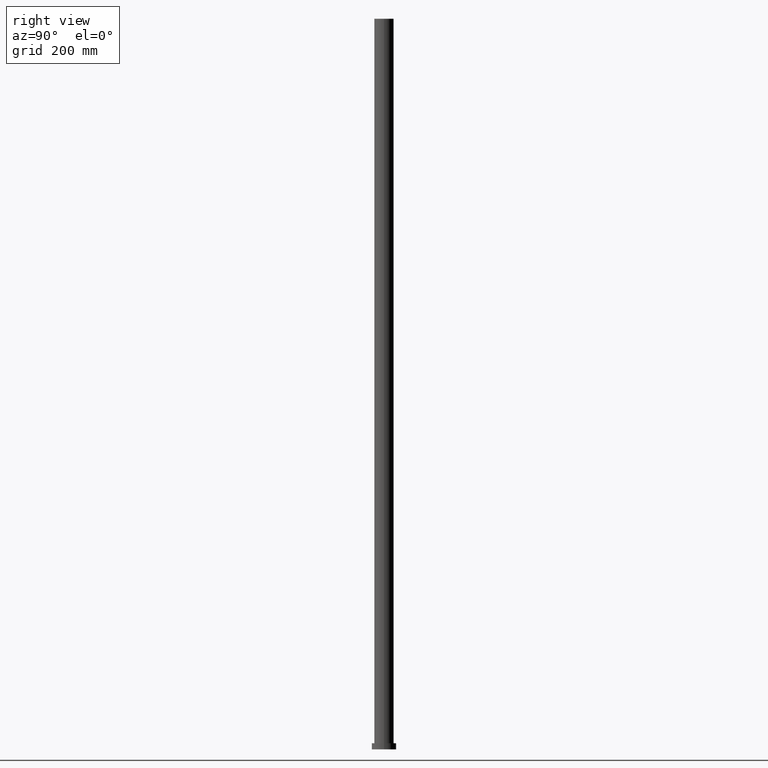
[diagram: clean part render]
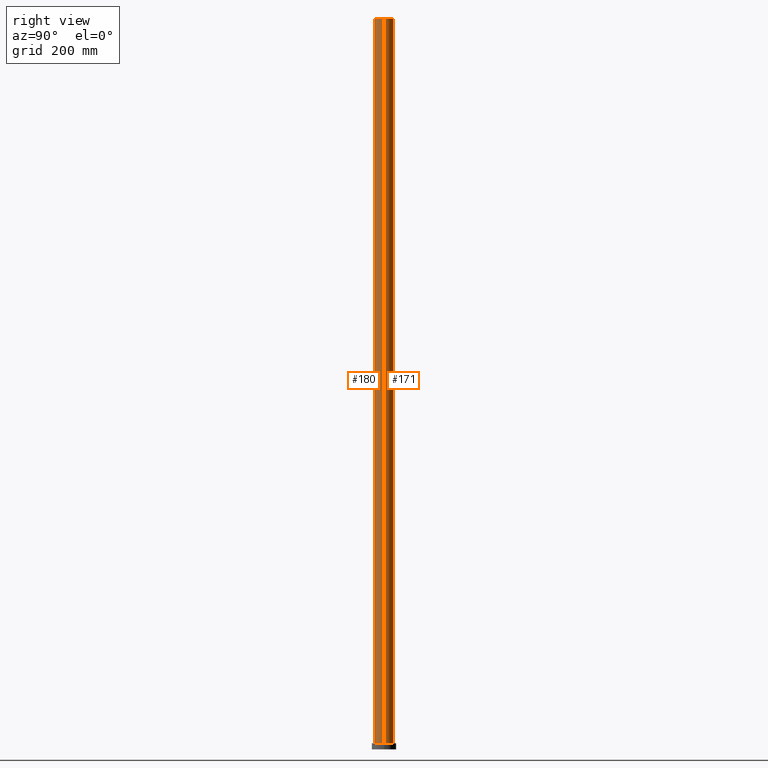
[diagram: same view with one multi-face feature highlighted, each face labeled with its STEP entity id]
A machine part, right view. The highlighted faces form ONE feature: a constant-radius fillet chain: 2 tangent blend faces with common blend radius 16 mm. The faces share edges in the B-rep.
Their STEP definitions:
[1] entity #180 (Cylinder):
#17 = CARTESIAN_POINT ( 'NONE',  ( 0.000000000000000000, 0.000000000000000000, 10.00000000000000000 ) ) ;
#20 = VERTEX_POINT ( 'NONE', #248 ) ;
#22 = ORIENTED_EDGE ( 'NONE', *, *, #137, .T. ) ;
#26 = LINE ( 'NONE', #106, #206 ) ;
#29 = DIRECTION ( 'NONE',  ( -1.000000000000000000, 0.000000000000000000, 0.000000000000000000 ) ) ;
#51 = CARTESIAN_POINT ( 'NONE',  ( 16.00000000000000000, 1.959434878635765131E-15, 10.00000000000000000 ) ) ;
#53 = AXIS2_PLACEMENT_3D ( 'NONE', #209, #187, #29 ) ;
#54 = VECTOR ( 'NONE', #226, 1000.000000000000000 ) ;
#63 = AXIS2_PLACEMENT_3D ( 'NONE', #17, #125, #91 ) ;
#68 = VERTEX_POINT ( 'NONE', #136 ) ;
#73 = FACE_OUTER_BOUND ( 'NONE', #220, .T. ) ;
#74 = DIRECTION ( 'NONE',  ( 0.000000000000000000, 0.000000000000000000, 1.000000000000000000 ) ) ;
#83 = ORIENTED_EDGE ( 'NONE', *, *, #170, .F. ) ;
#91 = DIRECTION ( 'NONE',  ( 1.000000000000000000, 0.000000000000000000, 0.000000000000000000 ) ) ;
#100 = VERTEX_POINT ( 'NONE', #51 ) ;
#106 = CARTESIAN_POINT ( 'NONE',  ( -16.00000000000000000, 0.000000000000000000, 1200.000000000000000 ) ) ;
#121 = ORIENTED_EDGE ( 'NONE', *, *, #198, .T. ) ;
#125 = DIRECTION ( 'NONE',  ( 0.000000000000000000, 0.000000000000000000, 1.000000000000000000 ) ) ;
#136 = CARTESIAN_POINT ( 'NONE',  ( -16.00000000000000000, 0.000000000000000000, 1200.000000000000000 ) ) ;
#137 = EDGE_CURVE ( 'NONE', #68, #20, #26, .T. ) ;
#142 = CYLINDRICAL_SURFACE ( 'NONE', #53, 16.00000000000000000 ) ;
#146 = AXIS2_PLACEMENT_3D ( 'NONE', #255, #74, #208 ) ;
#158 = VERTEX_POINT ( 'NONE', #211 ) ;
#170 = EDGE_CURVE ( 'NONE', #158, #100, #188, .T. ) ;
#176 = CIRCLE ( 'NONE', #146, 16.00000000000000000 ) ;
#180 = ADVANCED_FACE ( 'NONE', ( #73 ), #142, .T. ) ;
#186 = CARTESIAN_POINT ( 'NONE',  ( 16.00000000000000000, 1.959434878635765131E-15, 1200.000000000000000 ) ) ;
#187 = DIRECTION ( 'NONE',  ( -0.000000000000000000, -0.000000000000000000, -1.000000000000000000 ) ) ;
#188 = LINE ( 'NONE', #186, #54 ) ;
#198 = EDGE_CURVE ( 'NONE', #20, #100, #200, .T. ) ;
#200 = CIRCLE ( 'NONE', #63, 16.00000000000000000 ) ;
#204 = EDGE_CURVE ( 'NONE', #68, #158, #176, .T. ) ;
#205 = ORIENTED_EDGE ( 'NONE', *, *, #204, .F. ) ;
#206 = VECTOR ( 'NONE', #229, 1000.000000000000000 ) ;
#208 = DIRECTION ( 'NONE',  ( 1.000000000000000000, 0.000000000000000000, 0.000000000000000000 ) ) ;
#209 = CARTESIAN_POINT ( 'NONE',  ( 0.000000000000000000, 0.000000000000000000, 1200.000000000000000 ) ) ;
#211 = CARTESIAN_POINT ( 'NONE',  ( 16.00000000000000000, 1.959434878635765131E-15, 1200.000000000000000 ) ) ;
#220 = EDGE_LOOP ( 'NONE', ( #83, #205, #22, #121 ) ) ;
#226 = DIRECTION ( 'NONE',  ( -0.000000000000000000, -0.000000000000000000, -1.000000000000000000 ) ) ;
#229 = DIRECTION ( 'NONE',  ( -0.000000000000000000, -0.000000000000000000, -1.000000000000000000 ) ) ;
#248 = CARTESIAN_POINT ( 'NONE',  ( -16.00000000000000000, 0.000000000000000000, 10.00000000000000000 ) ) ;
#255 = CARTESIAN_POINT ( 'NONE',  ( 0.000000000000000000, 0.000000000000000000, 1200.000000000000000 ) ) ;
[2] entity #171 (Cylinder):
#4 = AXIS2_PLACEMENT_3D ( 'NONE', #105, #143, #87 ) ;
#15 = CYLINDRICAL_SURFACE ( 'NONE', #182, 16.00000000000000000 ) ;
#20 = VERTEX_POINT ( 'NONE', #248 ) ;
#24 = ORIENTED_EDGE ( 'NONE', *, *, #139, .T. ) ;
#26 = LINE ( 'NONE', #106, #206 ) ;
#37 = AXIS2_PLACEMENT_3D ( 'NONE', #227, #127, #46 ) ;
#42 = ORIENTED_EDGE ( 'NONE', *, *, #170, .T. ) ;
#43 = ORIENTED_EDGE ( 'NONE', *, *, #137, .F. ) ;
#46 = DIRECTION ( 'NONE',  ( 1.000000000000000000, 0.000000000000000000, 0.000000000000000000 ) ) ;
#47 = DIRECTION ( 'NONE',  ( -1.000000000000000000, 0.000000000000000000, 0.000000000000000000 ) ) ;
#51 = CARTESIAN_POINT ( 'NONE',  ( 16.00000000000000000, 1.959434878635765131E-15, 10.00000000000000000 ) ) ;
#54 = VECTOR ( 'NONE', #226, 1000.000000000000000 ) ;
#68 = VERTEX_POINT ( 'NONE', #136 ) ;
#78 = CIRCLE ( 'NONE', #37, 16.00000000000000000 ) ;
#79 = EDGE_LOOP ( 'NONE', ( #140, #42, #24, #43 ) ) ;
#87 = DIRECTION ( 'NONE',  ( 1.000000000000000000, 0.000000000000000000, 0.000000000000000000 ) ) ;
#90 = CARTESIAN_POINT ( 'NONE',  ( 0.000000000000000000, 0.000000000000000000, 1200.000000000000000 ) ) ;
#100 = VERTEX_POINT ( 'NONE', #51 ) ;
#105 = CARTESIAN_POINT ( 'NONE',  ( 0.000000000000000000, 0.000000000000000000, 10.00000000000000000 ) ) ;
#106 = CARTESIAN_POINT ( 'NONE',  ( -16.00000000000000000, 0.000000000000000000, 1200.000000000000000 ) ) ;
#127 = DIRECTION ( 'NONE',  ( 0.000000000000000000, 0.000000000000000000, 1.000000000000000000 ) ) ;
#128 = EDGE_CURVE ( 'NONE', #158, #68, #78, .T. ) ;
#136 = CARTESIAN_POINT ( 'NONE',  ( -16.00000000000000000, 0.000000000000000000, 1200.000000000000000 ) ) ;
#137 = EDGE_CURVE ( 'NONE', #68, #20, #26, .T. ) ;
#139 = EDGE_CURVE ( 'NONE', #100, #20, #224, .T. ) ;
#140 = ORIENTED_EDGE ( 'NONE', *, *, #128, .F. ) ;
#143 = DIRECTION ( 'NONE',  ( 0.000000000000000000, 0.000000000000000000, 1.000000000000000000 ) ) ;
#158 = VERTEX_POINT ( 'NONE', #211 ) ;
#167 = DIRECTION ( 'NONE',  ( -0.000000000000000000, -0.000000000000000000, -1.000000000000000000 ) ) ;
#170 = EDGE_CURVE ( 'NONE', #158, #100, #188, .T. ) ;
#171 = ADVANCED_FACE ( 'NONE', ( #189 ), #15, .T. ) ;
#182 = AXIS2_PLACEMENT_3D ( 'NONE', #90, #167, #47 ) ;
#186 = CARTESIAN_POINT ( 'NONE',  ( 16.00000000000000000, 1.959434878635765131E-15, 1200.000000000000000 ) ) ;
#188 = LINE ( 'NONE', #186, #54 ) ;
#189 = FACE_OUTER_BOUND ( 'NONE', #79, .T. ) ;
#206 = VECTOR ( 'NONE', #229, 1000.000000000000000 ) ;
#211 = CARTESIAN_POINT ( 'NONE',  ( 16.00000000000000000, 1.959434878635765131E-15, 1200.000000000000000 ) ) ;
#224 = CIRCLE ( 'NONE', #4, 16.00000000000000000 ) ;
#226 = DIRECTION ( 'NONE',  ( -0.000000000000000000, -0.000000000000000000, -1.000000000000000000 ) ) ;
#227 = CARTESIAN_POINT ( 'NONE',  ( 0.000000000000000000, 0.000000000000000000, 1200.000000000000000 ) ) ;
#229 = DIRECTION ( 'NONE',  ( -0.000000000000000000, -0.000000000000000000, -1.000000000000000000 ) ) ;
#248 = CARTESIAN_POINT ( 'NONE',  ( -16.00000000000000000, 0.000000000000000000, 10.00000000000000000 ) ) ;